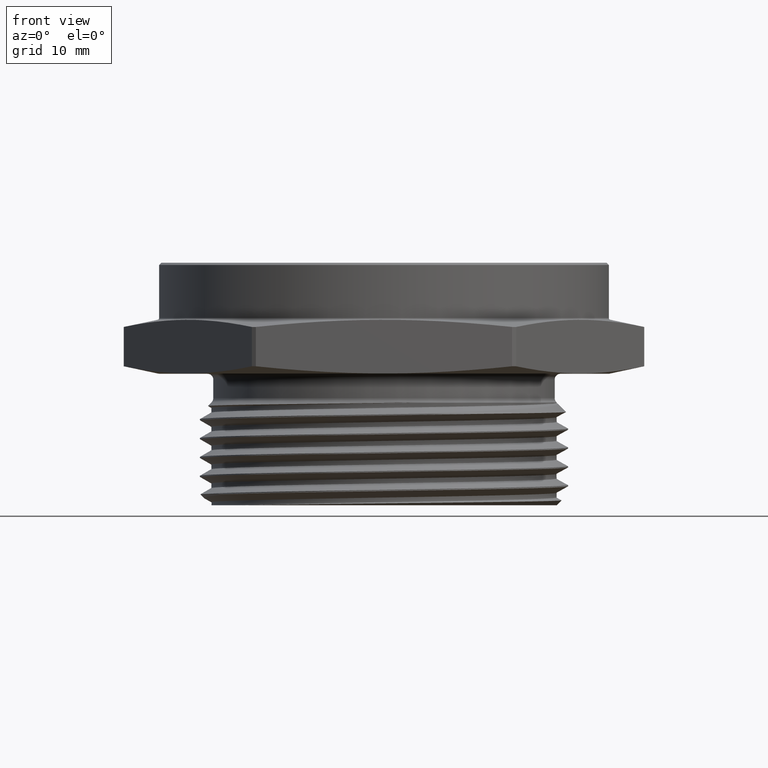
[diagram: clean part render]
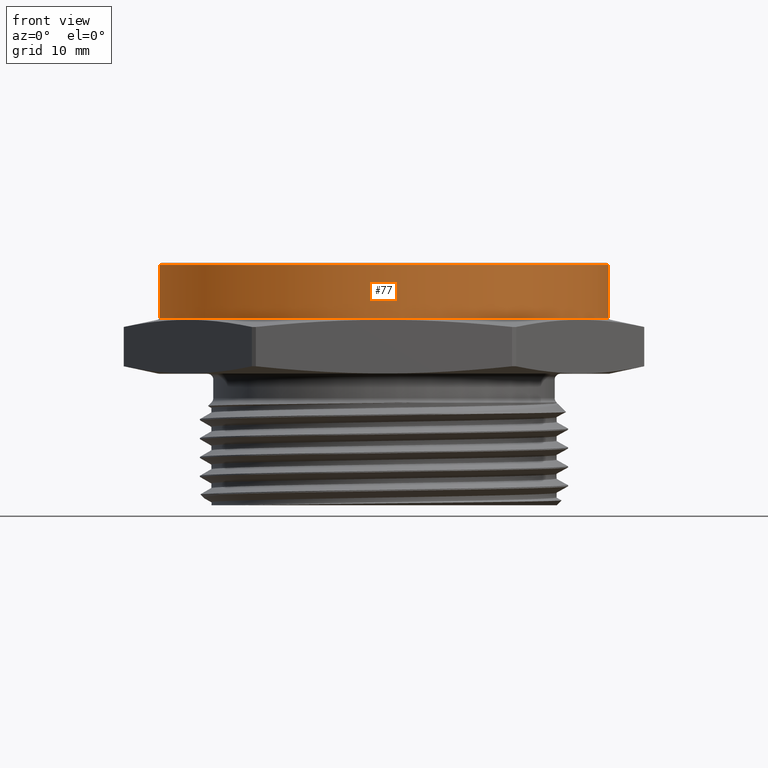
[diagram: same view with one face highlighted and labeled with its STEP entity id]
A machine part, front view. The second image highlights one B-rep face of the part: STEP entity #77.
In plain terms, the highlighted cylindrical surface (partial cylindrical patch) has radius 25.2095 mm, axis along (-0, -0, -1).
Its self-contained STEP definition (entity closure, byte-faithful):
#77 = ADVANCED_FACE ( 'NONE', ( #2294 ), #2297, .T. ) ;
#178 = CIRCLE ( 'NONE', #392, 0.9925000000000004900 ) ;
#319 = AXIS2_PLACEMENT_3D ( 'NONE', #3263, #3267, #3266 ) ;
#375 = AXIS2_PLACEMENT_3D ( 'NONE', #2609, #2610, #2611 ) ;
#392 = AXIS2_PLACEMENT_3D ( 'NONE', #966, #967, #968 ) ;
#505 = VERTEX_POINT ( 'NONE', #1940 ) ;
#525 = VERTEX_POINT ( 'NONE', #1960 ) ;
#530 = VERTEX_POINT ( 'NONE', #1965 ) ;
#531 = VERTEX_POINT ( 'NONE', #1966 ) ;
#596 = LINE ( 'NONE', #2578, #604 ) ;
#603 = LINE ( 'NONE', #2584, #607 ) ;
#604 = VECTOR ( 'NONE', #2574, 39.37007874015748100 ) ;
#607 = VECTOR ( 'NONE', #2582, 39.37007874015748100 ) ;
#615 = CIRCLE ( 'NONE', #375, 0.9925000000000004900 ) ;
#703 = EDGE_LOOP ( 'NONE', ( #3070, #3071, #3072, #3073 ) ) ;
#966 = CARTESIAN_POINT ( 'NONE',  ( 0.0000000000000000000, 0.0000000000000000000, 0.4800000000000002000 ) ) ;
#967 = DIRECTION ( 'NONE',  ( 0.0000000000000000000, 0.0000000000000000000, -1.000000000000000000 ) ) ;
#968 = DIRECTION ( 'NONE',  ( 1.000000000000000000, 0.0000000000000000000, 0.0000000000000000000 ) ) ;
#1940 = CARTESIAN_POINT ( 'NONE',  ( 0.9925000000000004900, 1.215461948153748600E-016, 0.2464782722655602100 ) ) ;
#1960 = CARTESIAN_POINT ( 'NONE',  ( -0.9925000000000004900, 0.0000000000000000000, 0.2464782722655603500 ) ) ;
#1965 = CARTESIAN_POINT ( 'NONE',  ( 0.9925000000000004900, 1.215461948153748600E-016, 0.4800000000000002000 ) ) ;
#1966 = CARTESIAN_POINT ( 'NONE',  ( -0.9925000000000004900, 0.0000000000000000000, 0.4800000000000002000 ) ) ;
#2294 = FACE_OUTER_BOUND ( 'NONE', #703, .T. ) ;
#2297 = CYLINDRICAL_SURFACE ( 'NONE', #319, 0.9925000000000004900 ) ;
#2574 = DIRECTION ( 'NONE',  ( -0.0000000000000000000, -0.0000000000000000000, -1.000000000000000000 ) ) ;
#2578 = CARTESIAN_POINT ( 'NONE',  ( -0.9925000000000004900, 0.0000000000000000000, 0.4899999999999999900 ) ) ;
#2582 = DIRECTION ( 'NONE',  ( -0.0000000000000000000, -0.0000000000000000000, -1.000000000000000000 ) ) ;
#2584 = CARTESIAN_POINT ( 'NONE',  ( 0.9925000000000004900, 1.215461948153748600E-016, 0.4899999999999999900 ) ) ;
#2609 = CARTESIAN_POINT ( 'NONE',  ( 0.0000000000000000000, 0.0000000000000000000, 0.2464782722655602700 ) ) ;
#2610 = DIRECTION ( 'NONE',  ( 6.123233995736748800E-017, 0.0000000000000000000, 1.000000000000000000 ) ) ;
#2611 = DIRECTION ( 'NONE',  ( 1.000000000000000000, 0.0000000000000000000, -6.881229203184539000E-017 ) ) ;
#2941 = EDGE_CURVE ( 'NONE', #531, #525, #596, .T. ) ;
#2943 = EDGE_CURVE ( 'NONE', #530, #505, #603, .T. ) ;
#2951 = EDGE_CURVE ( 'NONE', #525, #505, #615, .T. ) ;
#3022 = EDGE_CURVE ( 'NONE', #530, #531, #178, .T. ) ;
#3070 = ORIENTED_EDGE ( 'NONE', *, *, #2943, .F. ) ;
#3071 = ORIENTED_EDGE ( 'NONE', *, *, #3022, .T. ) ;
#3072 = ORIENTED_EDGE ( 'NONE', *, *, #2941, .T. ) ;
#3073 = ORIENTED_EDGE ( 'NONE', *, *, #2951, .T. ) ;
#3263 = CARTESIAN_POINT ( 'NONE',  ( 0.0000000000000000000, 0.0000000000000000000, 0.4899999999999999900 ) ) ;
#3266 = DIRECTION ( 'NONE',  ( -1.000000000000000000, 0.0000000000000000000, 0.0000000000000000000 ) ) ;
#3267 = DIRECTION ( 'NONE',  ( -0.0000000000000000000, -0.0000000000000000000, -1.000000000000000000 ) ) ;